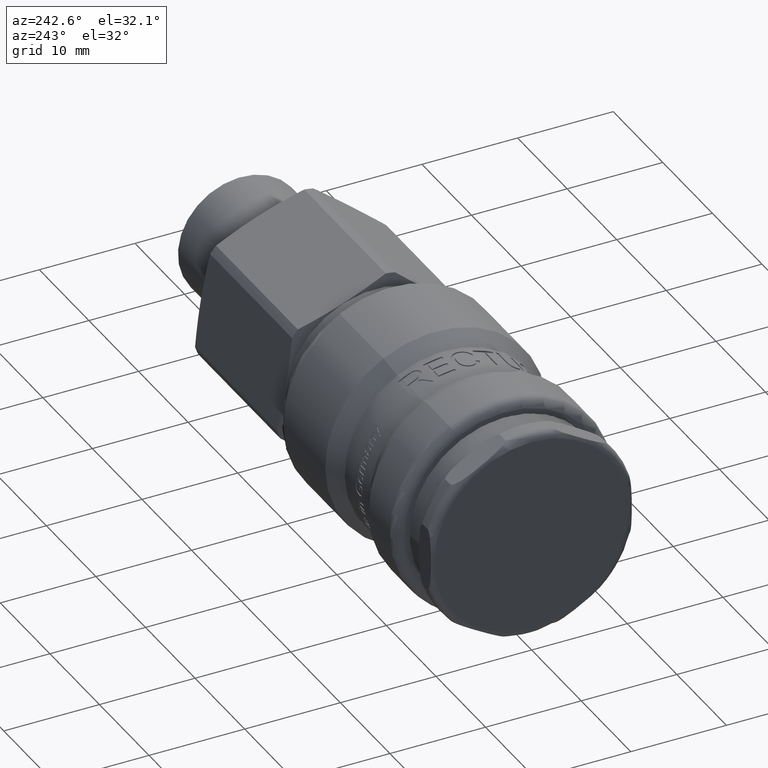
[diagram: clean part render]
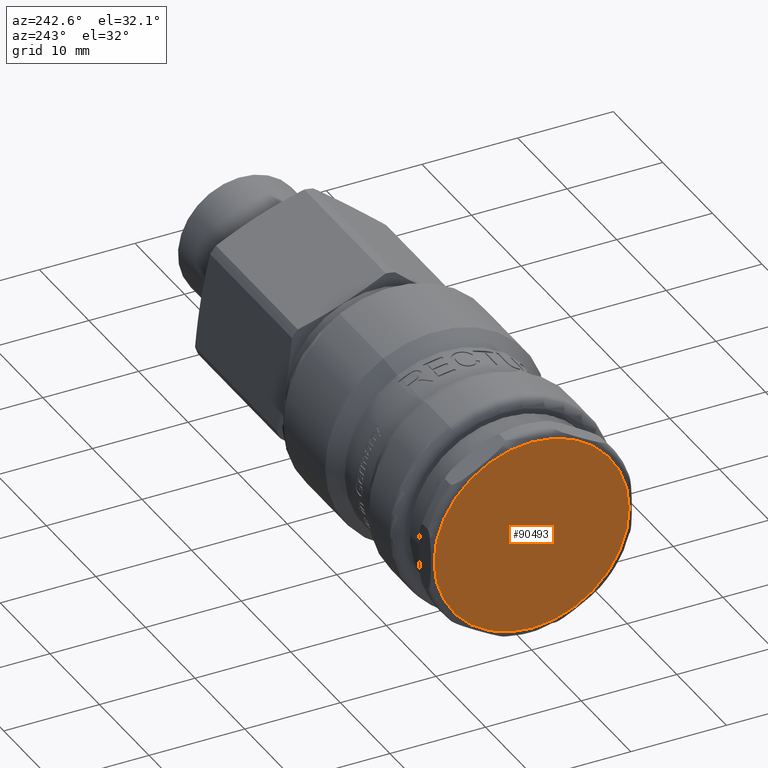
[diagram: same view with one face highlighted and labeled with its STEP entity id]
A machine part, auxiliary view. The second image highlights one B-rep face of the part: STEP entity #90493.
In plain terms, the highlighted planar face has unit normal (-1, 0, 0).
Its self-contained STEP definition (entity closure, byte-faithful):
#90400=CARTESIAN_POINT('',(-1.387779E-015,10.199999999999999,0.0));
#90401=VERTEX_POINT('',#90400);
#90402=CARTESIAN_POINT('',(-1.387779E-015,0.0,0.0));
#90403=DIRECTION('',(1.0,0.0,0.0));
#90404=DIRECTION('',(0.0,-1.0,0.0));
#90405=AXIS2_PLACEMENT_3D('',#90402,#90403,#90404);
#90406=CIRCLE('',#90405,10.199999999999999);
#90407=EDGE_CURVE('',#90401,#90401,#90406,.T.);
#90485=CARTESIAN_POINT('',(-1.324698E-015,8.750000000000002,0.0));
#90486=DIRECTION('',(-1.0,0.0,0.0));
#90487=DIRECTION('',(0.0,0.0,1.0));
#90488=AXIS2_PLACEMENT_3D('',#90485,#90486,#90487);
#90489=PLANE('',#90488);
#90490=ORIENTED_EDGE('',*,*,#90407,.F.);
#90491=EDGE_LOOP('',(#90490));
#90492=FACE_OUTER_BOUND('',#90491,.T.);
#90493=ADVANCED_FACE('',(#90492),#90489,.T.);